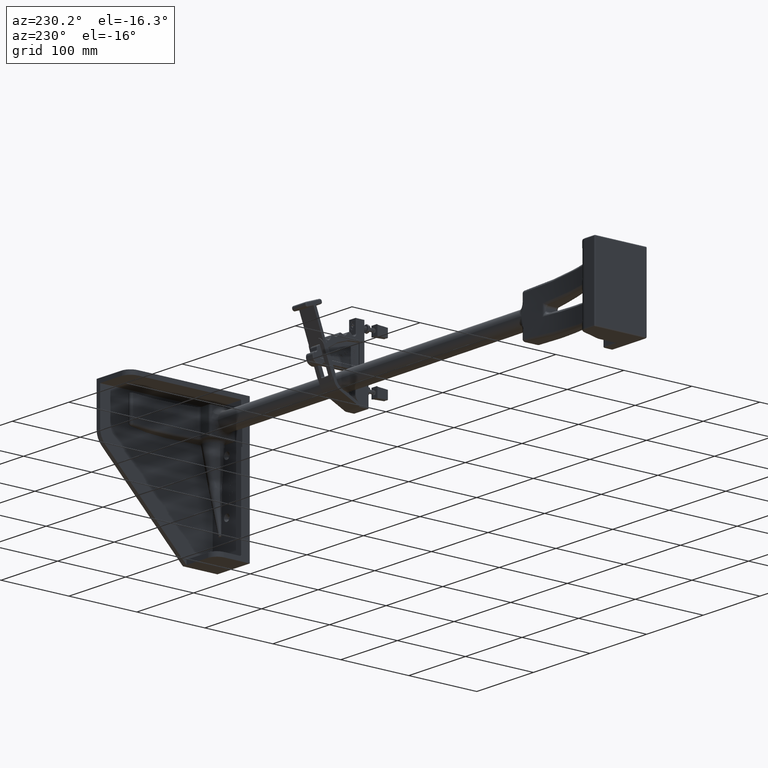
[diagram: clean part render]
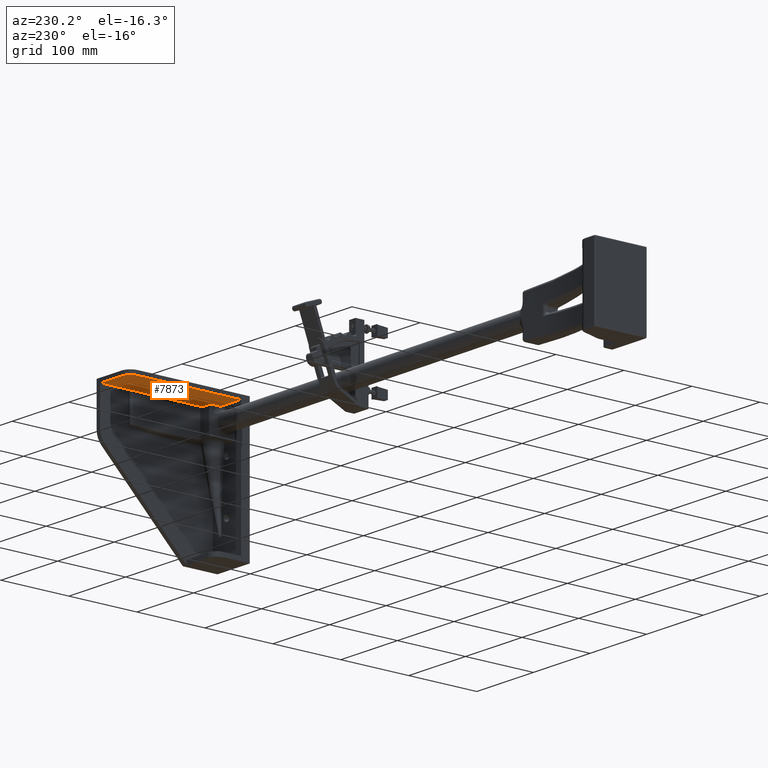
[diagram: same view with one face highlighted and labeled with its STEP entity id]
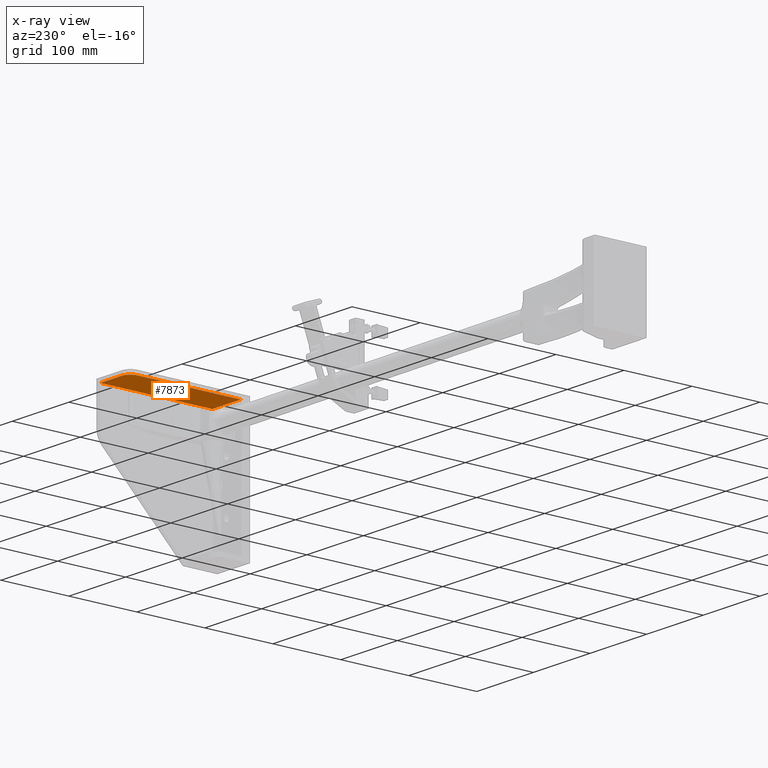
[diagram: x-ray of the same camera — body ghosted, the highlighted face saturated]
A machine part, auxiliary view. The second image highlights one B-rep face of the part: STEP entity #7873.
The next image is the same camera in x-ray: the body ghosted, the highlighted face saturated — about 0% of this face is hidden behind the body in this view.
In plain terms, the highlighted planar face has unit normal (-0, 0, 1).
Its self-contained STEP definition (entity closure, byte-faithful):
#4051 = EDGE_CURVE ( 'NONE', #9846, #9844, #27392, .T. ) ;
#4068 = EDGE_CURVE ( 'NONE', #9858, #9860, #27416, .T. ) ;
#4077 = EDGE_CURVE ( 'NONE', #9868, #9846, #27427, .T. ) ;
#4078 = EDGE_CURVE ( 'NONE', #9860, #9868, #27436, .T. ) ;
#4079 = EDGE_CURVE ( 'NONE', #9844, #9858, #27440, .T. ) ;
#6999 = ORIENTED_EDGE ( 'NONE', *, *, #4078, .T. ) ;
#7000 = ORIENTED_EDGE ( 'NONE', *, *, #4077, .T. ) ;
#7001 = ORIENTED_EDGE ( 'NONE', *, *, #4051, .T. ) ;
#7002 = ORIENTED_EDGE ( 'NONE', *, *, #4079, .T. ) ;
#7003 = ORIENTED_EDGE ( 'NONE', *, *, #4068, .T. ) ;
#7873 = ADVANCED_FACE ( 'NONE', ( #40330 ), #57199, .F. ) ;
#9844 = VERTEX_POINT ( 'NONE', #17539 ) ;
#9846 = VERTEX_POINT ( 'NONE', #17541 ) ;
#9858 = VERTEX_POINT ( 'NONE', #17551 ) ;
#9860 = VERTEX_POINT ( 'NONE', #17553 ) ;
#9868 = VERTEX_POINT ( 'NONE', #17561 ) ;
#13163 = AXIS2_PLACEMENT_3D ( 'NONE', #30467, #30490, #30491 ) ;
#14575 = EDGE_LOOP ( 'NONE', ( #6999, #7000, #7001, #7002, #7003 ) ) ;
#17539 = CARTESIAN_POINT ( 'NONE',  ( 3.624999999999999600, -1.125000000000000700, 6.499999999999992000 ) ) ;
#17541 = CARTESIAN_POINT ( 'NONE',  ( 3.625000000000000400, -1.125000000000000700, 0.5299999999999995800 ) ) ;
#17551 = CARTESIAN_POINT ( 'NONE',  ( 3.624999999999999600, -0.6250000000000033300, 6.999999999999992000 ) ) ;
#17553 = CARTESIAN_POINT ( 'NONE',  ( 3.624999999999999600, 0.8450000000000310600, 6.999999999999992000 ) ) ;
#17561 = CARTESIAN_POINT ( 'NONE',  ( 3.624999999999999600, 0.8450000000000310600, 0.5300000000000004700 ) ) ;
#27392 = LINE ( 'NONE', #30355, #27393 ) ;
#27393 = VECTOR ( 'NONE', #30357, 39.37007874015748100 ) ;
#27416 = LINE ( 'NONE', #30436, #27419 ) ;
#27419 = VECTOR ( 'NONE', #30437, 39.37007874015748100 ) ;
#27427 = LINE ( 'NONE', #30478, #27432 ) ;
#27432 = VECTOR ( 'NONE', #30480, 39.37007874015748100 ) ;
#27436 = LINE ( 'NONE', #30483, #27437 ) ;
#27437 = VECTOR ( 'NONE', #30485, 39.37007874015748100 ) ;
#27440 = CIRCLE ( 'NONE', #13163, 0.4999999999999996100 ) ;
#30355 = CARTESIAN_POINT ( 'NONE',  ( 3.624999999999999600, -1.125000000000000700, 6.999999999999992000 ) ) ;
#30357 = DIRECTION ( 'NONE',  ( -1.122785804508389400E-016, 5.483879216773379800E-016, 1.000000000000000000 ) ) ;
#30436 = CARTESIAN_POINT ( 'NONE',  ( 3.624999999999999600, -7.629805915628850200, 6.999999999999992000 ) ) ;
#30437 = DIRECTION ( 'NONE',  ( -2.119138550749780000E-016, 1.000000000000000000, 5.483879216773363100E-016 ) ) ;
#30467 = CARTESIAN_POINT ( 'NONE',  ( 3.624999999999999600, -0.6249999999999988900, 6.499999999999992000 ) ) ;
#30478 = CARTESIAN_POINT ( 'NONE',  ( 3.625000000000000400, -7.629805915628850200, 0.5299999999999958100 ) ) ;
#30480 = DIRECTION ( 'NONE',  ( 2.119138550749780000E-016, -1.000000000000000000, -5.483879216773363100E-016 ) ) ;
#30483 = CARTESIAN_POINT ( 'NONE',  ( 3.624999999999999600, 0.8450000000000310600, 0.5000000000000001100 ) ) ;
#30485 = DIRECTION ( 'NONE',  ( 1.122785804508389400E-016, -5.483879216773379800E-016, -1.000000000000000000 ) ) ;
#30490 = DIRECTION ( 'NONE',  ( -1.000000000000000000, 1.766642035438267900E-016, -5.583514223619267200E-017 ) ) ;
#30491 = DIRECTION ( 'NONE',  ( 0.0000000000000000000, -1.365923996832132600E-015, -1.000000000000000000 ) ) ;
#35002 = AXIS2_PLACEMENT_3D ( 'NONE', #57194, #57204, #57205 ) ;
#40330 = FACE_OUTER_BOUND ( 'NONE', #14575, .T. ) ;
#57194 = CARTESIAN_POINT ( 'NONE',  ( 3.624999999999999600, -7.629805915628850200, 6.999999999999992000 ) ) ;
#57199 = PLANE ( 'NONE',  #35002 ) ;
#57204 = DIRECTION ( 'NONE',  ( 1.000000000000000000, -1.766642035438267400E-016, 1.122785804508390400E-016 ) ) ;
#57205 = DIRECTION ( 'NONE',  ( 1.122785804508389400E-016, -5.483879216773379800E-016, -1.000000000000000000 ) ) ;